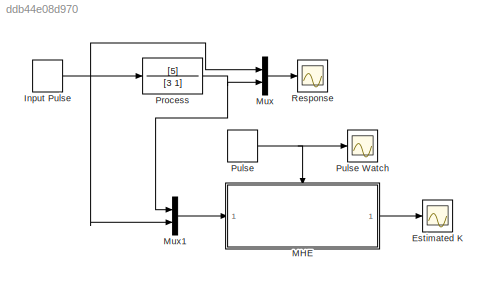
MODEL slx_ddb44e08d970
KIND model
BLOCK [Scope] Estimated K
  DataFormat = StructureWithTime
  Floating = off
  NumInputPorts = 1
  Ports = [1]
  SampleTime = 0
  SaveName = ScopeData2
  ShowLegends = off
BLOCK [DiscretePulseGenerator] Input Pulse
  Amplitude = 10
  Period = 5
  Ports = [0, 1]
  PulseType = Time based
  PulseWidth = 50
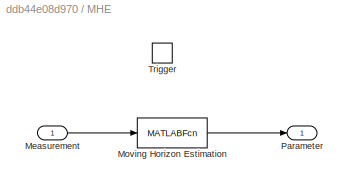
BLOCK [SubSystem] MHE
  FunctionWithSeparateData = off
  MaskHideContents = off
  MinAlgLoopOccurrences = off
  Opaque = off
  Ports = [1, 1, 0, 1]
  PropExecContextOutsideSubsystem = off
  RTWSystemCode = Auto
  RequestExecContextInheritance = off
  TreatAsAtomicUnit = on
BLOCK [Inport] MHE/Measurement
  IconDisplay = Port number
  PortDimensions = 2
BLOCK [MATLABFcn] MHE/Moving Horizon Estimation
  MATLABFcn = estimator_new
  Ports = [1, 1]
BLOCK [Outport] MHE/Parameter
  IconDisplay = Port number
BLOCK [TriggerPort] MHE/Trigger
  Ports = []
  StatesWhenEnabling = held
BLOCK [Mux] Mux
  DisplayOption = bar
  Inputs = 2
  Ports = [2, 1]
BLOCK [Mux] Mux1
  DisplayOption = bar
  Inputs = 2
  Ports = [2, 1]
BLOCK [TransferFcn] Process
  Denominator = [3 1]
  Numerator = [5]
BLOCK [DiscretePulseGenerator] Pulse
  Period = 0.2
  Ports = [0, 1]
  PulseType = Time based
  PulseWidth = 5
BLOCK [Scope] Pulse Watch
  DataFormat = StructureWithTime
  Floating = off
  NumInputPorts = 1
  Ports = [1]
  SampleTime = 0
  SaveName = ScopeData1
  ShowLegends = off
BLOCK [Scope] Response
  DataFormat = StructureWithTime
  Floating = off
  NumInputPorts = 1
  Ports = [1]
  SampleTime = 0
  ShowLegends = off
NET Input Pulse:1 -> Mux1:2, Mux:1, Process:1
LINE MHE/Measurement:1 -> MHE/Moving Horizon Estimation:1
LINE MHE/Moving Horizon Estimation:1 -> MHE/Parameter:1
LINE MHE:1 -> Estimated K:1
LINE Mux1:1 -> MHE:1
LINE Mux:1 -> Response:1
NET Process:1 -> Mux1:1, Mux:2
NET Pulse:1 -> MHE:trigger, Pulse Watch:1
note: NET lines group one-source signal fan-out (src -> all destinations, sorted); 1:1 wires keep LINE
